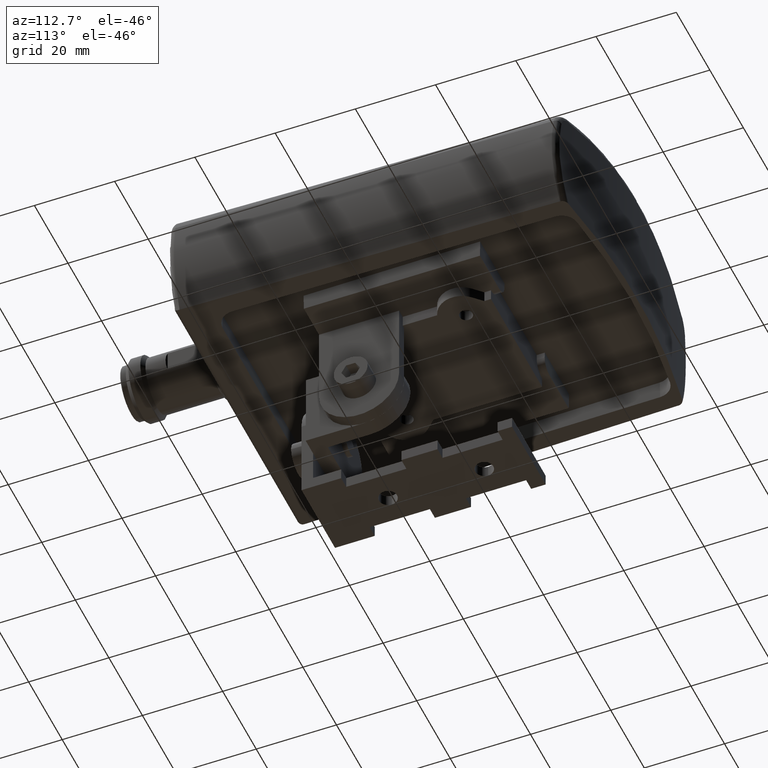
[diagram: clean part render]
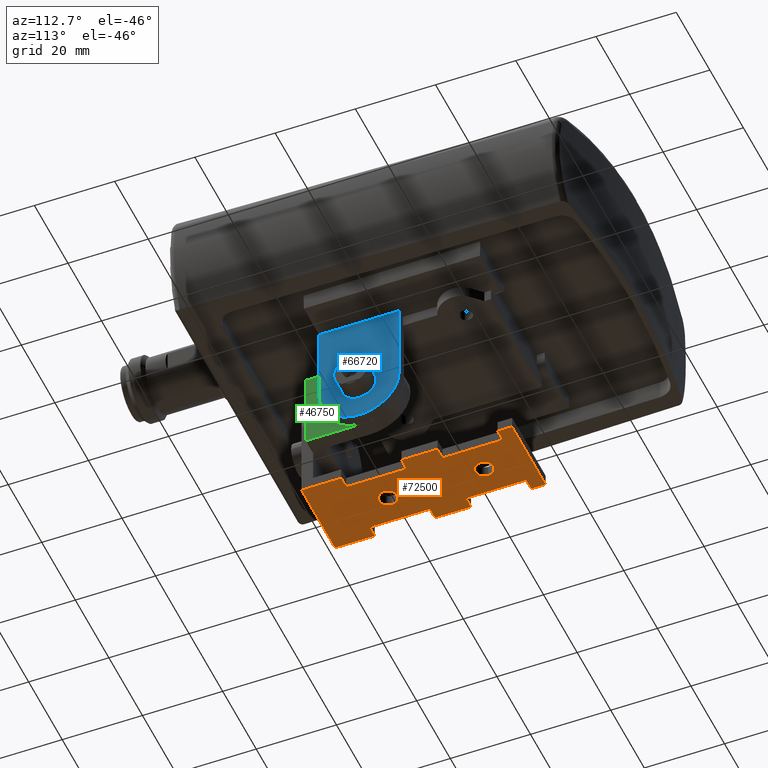
[diagram: same view with three faces highlighted in distinct colors, each labeled with its STEP entity id]
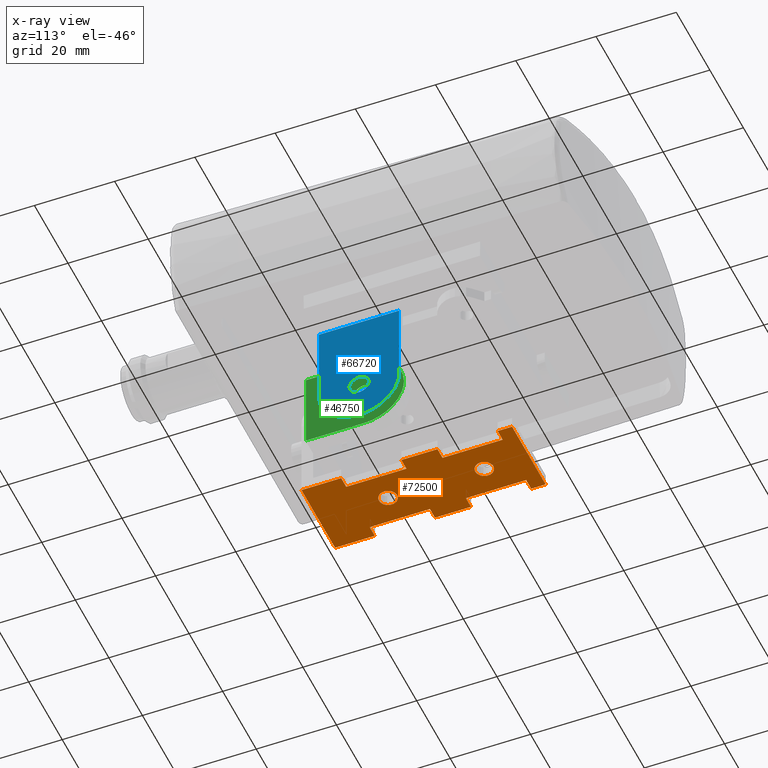
[diagram: x-ray of the same camera — body ghosted, the three highlighted faces saturated]
A machine part, auxiliary view with three faces highlighted in distinct colors.
The next image is the same camera in x-ray (body ghosted, the three faces saturated) — at least one of them is partly hidden behind the body in this view.
Their STEP definitions:

[orange] entity #72500 — the highlighted planar face has unit normal (-0, -0, -1).
#70250=CARTESIAN_POINT('',(2.24999999991314,20.9999999999364,
-33.4000000000816));
#70260=VERTEX_POINT('',#70250);
#70420=CARTESIAN_POINT('',(-2.25000000008688,20.9999999999364,
-33.4000000000816));
#70430=VERTEX_POINT('',#70420);
#70460=CARTESIAN_POINT('',(-8.68702870054916E-11,20.9999999999364,
-33.4000000000816));
#70470=DIRECTION('',(0.,1.,0.));
#70480=DIRECTION('',(1.,0.,0.));
#70490=AXIS2_PLACEMENT_3D('',#70460,#70470,#70480);
#70500=CIRCLE('',#70490,2.25000000000001);
#70510=EDGE_CURVE('',#70260,#70430,#70500,.T.);
#70630=CARTESIAN_POINT('',(-10.5006615002634,20.9999999999364,
3.26566149985691));
#70640=DIRECTION('',(-0.,1.,0.));
#70650=DIRECTION('',(1.,0.,0.));
#70660=AXIS2_PLACEMENT_3D('',#70630,#70640,#70650);
#70670=PLANE('',#70660);
#70680=EDGE_CURVE('',#70430,#70260,#70500,.T.);
#70690=ORIENTED_EDGE('',*,*,#70680,.F.);
#70700=ORIENTED_EDGE('',*,*,#70510,.F.);
#70710=EDGE_LOOP('',(#70700,#70690));
#70720=FACE_BOUND('',#70710,.T.);
#70730=CARTESIAN_POINT('',(-1.41042144977122E-10,20.9999999999364,
-9.40000000009163));
#70740=DIRECTION('',(0.,1.,0.));
#70750=DIRECTION('',(1.,0.,0.));
#70760=AXIS2_PLACEMENT_3D('',#70730,#70740,#70750);
#70770=CIRCLE('',#70760,2.25);
#70780=CARTESIAN_POINT('',(-2.25000000014104,20.9999999999364,
-9.40000000009163));
#70790=VERTEX_POINT('',#70780);
#70800=CARTESIAN_POINT('',(2.24999999985896,20.9999999999364,
-9.40000000009163));
#70810=VERTEX_POINT('',#70800);
#70820=EDGE_CURVE('',#70790,#70810,#70770,.T.);
#70830=ORIENTED_EDGE('',*,*,#70820,.F.);
#70840=EDGE_CURVE('',#70810,#70790,#70770,.T.);
#70850=ORIENTED_EDGE('',*,*,#70840,.F.);
#70860=EDGE_LOOP('',(#70850,#70830));
#70870=FACE_BOUND('',#70860,.T.);
#70880=CARTESIAN_POINT('',(0.,20.9999999999364,-44.5000000001218));
#70890=DIRECTION('',(1.,0.,0.));
#70900=VECTOR('',#70890,1.);
#70910=LINE('',#70880,#70900);
#70920=CARTESIAN_POINT('',(-10.0000000001507,20.9999999999364,
-44.5000000001218));
#70930=VERTEX_POINT('',#70920);
#70940=CARTESIAN_POINT('',(9.9999999998893,20.9999999999364,
-44.5000000001218));
#70950=VERTEX_POINT('',#70940);
#70960=EDGE_CURVE('',#70930,#70950,#70910,.T.);
#70970=ORIENTED_EDGE('',*,*,#70960,.F.);
#70980=CARTESIAN_POINT('',(9.9999999998893,20.9999999999364,0.));
#70990=DIRECTION('',(0.,0.,1.));
#71000=VECTOR('',#70990,1.);
#71010=LINE('',#70980,#71000);
#71020=CARTESIAN_POINT('',(9.9999999998893,20.9999999999364,
-40.900000000104));
#71030=VERTEX_POINT('',#71020);
#71040=EDGE_CURVE('',#70950,#71030,#71010,.T.);
#71050=ORIENTED_EDGE('',*,*,#71040,.F.);
#71060=CARTESIAN_POINT('',(0.,20.9999999999364,-40.900000000104));
#71070=DIRECTION('',(1.,0.,0.));
#71080=VECTOR('',#71070,1.);
#71090=LINE('',#71060,#71080);
#71100=CARTESIAN_POINT('',(6.99999999988665,20.9999999999364,
-40.9000000001));
#71110=VERTEX_POINT('',#71100);
#71120=EDGE_CURVE('',#71110,#71030,#71090,.T.);
#71130=ORIENTED_EDGE('',*,*,#71120,.T.);
#71140=CARTESIAN_POINT('',(6.99999999988665,20.9999999999364,0.));
#71150=DIRECTION('',(0.,0.,-1.));
#71160=VECTOR('',#71150,1.);
#71170=LINE('',#71140,#71160);
#71180=CARTESIAN_POINT('',(6.99999999988665,20.9999999999364,
-25.900000000104));
#71190=VERTEX_POINT('',#71180);
#71200=EDGE_CURVE('',#71190,#71110,#71170,.T.);
#71210=ORIENTED_EDGE('',*,*,#71200,.T.);
#71220=CARTESIAN_POINT('',(0.,20.9999999999364,-25.900000000104));
#71230=DIRECTION('',(1.,0.,0.));
#71240=VECTOR('',#71230,1.);
#71250=LINE('',#71220,#71240);
#71260=CARTESIAN_POINT('',(9.99999999984762,20.9999999999364,
-25.900000000104));
#71270=VERTEX_POINT('',#71260);
#71280=EDGE_CURVE('',#71190,#71270,#71250,.T.);
#71290=ORIENTED_EDGE('',*,*,#71280,.F.);
#71300=CARTESIAN_POINT('',(9.99999999984762,20.9999999999364,0.));
#71310=DIRECTION('',(0.,0.,1.));
#71320=VECTOR('',#71310,1.);
#71330=LINE('',#71300,#71320);
#71340=CARTESIAN_POINT('',(9.99999999984762,20.9999999999364,
-16.900000000104));
#71350=VERTEX_POINT('',#71340);
#71360=EDGE_CURVE('',#71270,#71350,#71330,.T.);
#71370=ORIENTED_EDGE('',*,*,#71360,.F.);
#71380=CARTESIAN_POINT('',(0.,20.9999999999364,-16.900000000104));
#71390=DIRECTION('',(1.,0.,0.));
#71400=VECTOR('',#71390,1.);
#71410=LINE('',#71380,#71400);
#71420=CARTESIAN_POINT('',(6.99999999959,20.9999999999364,
-16.900000000104));
#71430=VERTEX_POINT('',#71420);
#71440=EDGE_CURVE('',#71430,#71350,#71410,.T.);
#71450=ORIENTED_EDGE('',*,*,#71440,.T.);
#71460=CARTESIAN_POINT('',(6.99999999983665,20.9999999999364,0.));
#71470=DIRECTION('',(0.,0.,-1.));
#71480=VECTOR('',#71470,1.);
#71490=LINE('',#71460,#71480);
#71500=CARTESIAN_POINT('',(6.99999999983665,20.9999999999364,
-1.90000000009));
#71510=VERTEX_POINT('',#71500);
#71520=EDGE_CURVE('',#71510,#71430,#71490,.T.);
#71530=ORIENTED_EDGE('',*,*,#71520,.T.);
#71540=CARTESIAN_POINT('',(0.,20.9999999999364,-1.900000000094));
#71550=DIRECTION('',(1.,0.,0.));
#71560=VECTOR('',#71550,1.);
#71570=LINE('',#71540,#71560);
#71580=CARTESIAN_POINT('',(10.0000000000918,20.9999999999364,
-1.900000000094));
#71590=VERTEX_POINT('',#71580);
#71600=EDGE_CURVE('',#71510,#71590,#71570,.T.);
#71610=ORIENTED_EDGE('',*,*,#71600,.F.);
#71620=CARTESIAN_POINT('',(10.0000000000918,20.9999999999364,0.));
#71630=DIRECTION('',(0.,0.,1.));
#71640=VECTOR('',#71630,1.);
#71650=LINE('',#71620,#71640);
#71660=CARTESIAN_POINT('',(10.0000000000918,20.9999999999364,
7.99999999989478));
#71670=VERTEX_POINT('',#71660);
#71680=EDGE_CURVE('',#71590,#71670,#71650,.T.);
#71690=ORIENTED_EDGE('',*,*,#71680,.F.);
#71700=CARTESIAN_POINT('',(0.,20.9999999999364,7.99999999989478));
#71710=DIRECTION('',(-1.,0.,0.));
#71720=VECTOR('',#71710,1.);
#71730=LINE('',#71700,#71720);
#71740=CARTESIAN_POINT('',(-10.0000000002357,20.9999999999364,
7.99999999989478));
#71750=VERTEX_POINT('',#71740);
#71760=EDGE_CURVE('',#71670,#71750,#71730,.T.);
#71770=ORIENTED_EDGE('',*,*,#71760,.F.);
#71780=CARTESIAN_POINT('',(-10.0000000002357,20.9999999999364,0.));
#71790=DIRECTION('',(0.,0.,1.));
#71800=VECTOR('',#71790,1.);
#71810=LINE('',#71780,#71800);
#71820=CARTESIAN_POINT('',(-10.0000000002357,20.9999999999364,
-1.90000000012697));
#71830=VERTEX_POINT('',#71820);
#71840=EDGE_CURVE('',#71830,#71750,#71810,.T.);
#71850=ORIENTED_EDGE('',*,*,#71840,.T.);
#71860=CARTESIAN_POINT('',(0.,20.9999999999364,-1.90000000012697));
#71870=DIRECTION('',(-1.,0.,0.));
#71880=VECTOR('',#71870,1.);
#71890=LINE('',#71860,#71880);
#71900=CARTESIAN_POINT('',(-7.00000000008,20.9999999999364,
-1.90000000012697));
#71910=VERTEX_POINT('',#71900);
#71920=EDGE_CURVE('',#71910,#71830,#71890,.T.);
#71930=ORIENTED_EDGE('',*,*,#71920,.T.);
#71940=CARTESIAN_POINT('',(-7.00000000016335,20.9999999999364,0.));
#71950=DIRECTION('',(0.,0.,1.));
#71960=VECTOR('',#71950,1.);
#71970=LINE('',#71940,#71960);
#71980=CARTESIAN_POINT('',(-7.00000000004,20.9999999999364,
-16.900000000097));
#71990=VERTEX_POINT('',#71980);
#72000=EDGE_CURVE('',#71990,#71910,#71970,.T.);
#72010=ORIENTED_EDGE('',*,*,#72000,.T.);
#72020=CARTESIAN_POINT('',(0.,20.9999999999364,-16.900000000097));
#72030=DIRECTION('',(-1.,0.,0.));
#72040=VECTOR('',#72030,1.);
#72050=LINE('',#72020,#72040);
#72060=CARTESIAN_POINT('',(-10.0000000001924,20.9999999999364,
-16.900000000097));
#72070=VERTEX_POINT('',#72060);
#72080=EDGE_CURVE('',#71990,#72070,#72050,.T.);
#72090=ORIENTED_EDGE('',*,*,#72080,.F.);
#72100=CARTESIAN_POINT('',(-10.0000000001924,20.9999999999364,0.));
#72110=DIRECTION('',(0.,0.,1.));
#72120=VECTOR('',#72110,1.);
#72130=LINE('',#72100,#72120);
#72140=CARTESIAN_POINT('',(-10.0000000001924,20.9999999999364,
-25.900000000097));
#72150=VERTEX_POINT('',#72140);
#72160=EDGE_CURVE('',#72150,#72070,#72130,.T.);
#72170=ORIENTED_EDGE('',*,*,#72160,.T.);
#72180=CARTESIAN_POINT('',(0.,20.9999999999364,-25.900000000097));
#72190=DIRECTION('',(-1.,0.,0.));
#72200=VECTOR('',#72190,1.);
#72210=LINE('',#72180,#72200);
#72220=CARTESIAN_POINT('',(-7.00000000011335,20.9999999999364,
-25.9000000001));
#72230=VERTEX_POINT('',#72220);
#72240=EDGE_CURVE('',#72230,#72150,#72210,.T.);
#72250=ORIENTED_EDGE('',*,*,#72240,.T.);
#72260=CARTESIAN_POINT('',(-7.00000000011335,20.9999999999364,0.));
#72270=DIRECTION('',(0.,0.,1.));
#72280=VECTOR('',#72270,1.);
#72290=LINE('',#72260,#72280);
#72300=CARTESIAN_POINT('',(-7.00000000011335,20.9999999999364,
-40.9000000001));
#72310=VERTEX_POINT('',#72300);
#72320=EDGE_CURVE('',#72310,#72230,#72290,.T.);
#72330=ORIENTED_EDGE('',*,*,#72320,.T.);
#72340=CARTESIAN_POINT('',(0.,20.9999999999364,-40.900000000097));
#72350=DIRECTION('',(-1.,0.,0.));
#72360=VECTOR('',#72350,1.);
#72370=LINE('',#72340,#72360);
#72380=CARTESIAN_POINT('',(-10.0000000001507,20.9999999999364,
-40.900000000097));
#72390=VERTEX_POINT('',#72380);
#72400=EDGE_CURVE('',#72310,#72390,#72370,.T.);
#72410=ORIENTED_EDGE('',*,*,#72400,.F.);
#72420=CARTESIAN_POINT('',(-10.0000000001507,20.9999999999364,0.));
#72430=DIRECTION('',(0.,0.,1.));
#72440=VECTOR('',#72430,1.);
#72450=LINE('',#72420,#72440);
#72460=EDGE_CURVE('',#70930,#72390,#72450,.T.);
#72470=ORIENTED_EDGE('',*,*,#72460,.T.);
#72480=EDGE_LOOP('',(#72470,#72410,#72330,#72250,#72170,#72090,#72010,
#71930,#71850,#71770,#71690,#71610,#71530,#71450,#71370,#71290,#71210,
#71130,#71050,#70970));
#72490=FACE_OUTER_BOUND('',#72480,.T.);
#72500=ADVANCED_FACE('',(#70720,#70870,#72490),#70670,.T.);

[blue] entity #66720 — the highlighted planar face has unit normal (1, -0, -0).
#62300=CARTESIAN_POINT('',(-17.2999999995781,-20.499939074518,
-19.4000000000288));
#62310=VERTEX_POINT('',#62300);
#62360=CARTESIAN_POINT('',(-17.2999999995781,-20.499939074518,0.));
#62370=DIRECTION('',(0.,-3.15864629346254E-17,-1.));
#62380=VECTOR('',#62370,1.);
#62390=LINE('',#62360,#62380);
#62400=CARTESIAN_POINT('',(-17.2999999995781,-20.499939074518,
0.600000000014597));
#62410=VERTEX_POINT('',#62400);
#62420=EDGE_CURVE('',#62410,#62310,#62390,.T.);
#63430=CARTESIAN_POINT('',(-17.2999999995781,0.,0.600000000014597));
#63440=DIRECTION('',(0.,-1.,0.));
#63450=VECTOR('',#63440,1.);
#63460=LINE('',#63430,#63450);
#63470=CARTESIAN_POINT('',(-17.2999999995781,-2.50881154290795E-10,
0.600000000035747));
#63480=VERTEX_POINT('',#63470);
#63490=EDGE_CURVE('',#63480,#62410,#63460,.T.);
#65200=CARTESIAN_POINT('',(-17.2999999995781,-2.50880925443246E-10,
-19.3999999999642));
#65210=VERTEX_POINT('',#65200);
#65240=CARTESIAN_POINT('',(-17.2999999995781,0.,-19.4000000000288));
#65250=DIRECTION('',(0.,-1.,0.));
#65260=VECTOR('',#65250,1.);
#65270=LINE('',#65240,#65260);
#65280=EDGE_CURVE('',#65210,#62310,#65270,.T.);
#66400=CARTESIAN_POINT('',(-17.2999999995781,-17.2395804273111,
2.60000718699516));
#66410=DIRECTION('',(-1.,0.,0.));
#66420=DIRECTION('',(0.,1.,0.));
#66430=AXIS2_PLACEMENT_3D('',#66400,#66410,#66420);
#66440=PLANE('',#66430);
#66450=CARTESIAN_POINT('',(-17.2999999995781,-1.40287781391635E-10,
-9.39999999996617));
#66460=DIRECTION('',(-1.,0.,-9.33204437958375E-28));
#66470=DIRECTION('',(0.,1.,0.));
#66480=AXIS2_PLACEMENT_3D('',#66450,#66460,#66470);
#66490=CIRCLE('',#66480,2.5);
#66500=CARTESIAN_POINT('',(-17.2999999995781,2.49999999985971,
-9.39999999996617));
#66510=VERTEX_POINT('',#66500);
#66520=CARTESIAN_POINT('',(-17.2999999995781,-2.50000000014029,
-9.39999999996617));
#66530=VERTEX_POINT('',#66520);
#66540=EDGE_CURVE('',#66510,#66530,#66490,.T.);
#66550=ORIENTED_EDGE('',*,*,#66540,.F.);
#66560=EDGE_CURVE('',#66530,#66510,#66490,.T.);
#66570=ORIENTED_EDGE('',*,*,#66560,.F.);
#66580=EDGE_LOOP('',(#66570,#66550));
#66590=FACE_BOUND('',#66580,.T.);
#66600=CARTESIAN_POINT('',(-17.2999999995781,-1.49724677100949E-10,
-9.39999999996425));
#66610=DIRECTION('',(-1.,0.,0.));
#66620=DIRECTION('',(0.,1.,0.));
#66630=AXIS2_PLACEMENT_3D('',#66600,#66610,#66620);
#66640=CIRCLE('',#66630,10.);
#66650=EDGE_CURVE('',#63480,#65210,#66640,.T.);
#66660=ORIENTED_EDGE('',*,*,#66650,.T.);
#66670=ORIENTED_EDGE('',*,*,#63490,.F.);
#66680=ORIENTED_EDGE('',*,*,#62420,.F.);
#66690=ORIENTED_EDGE('',*,*,#65280,.T.);
#66700=EDGE_LOOP('',(#66690,#66680,#66670,#66660));
#66710=FACE_OUTER_BOUND('',#66700,.T.);
#66720=ADVANCED_FACE('',(#66590,#66710),#66440,.T.);

[green] entity #46750 — the highlighted planar face has unit normal (1, -0, -0).
#45220=CARTESIAN_POINT('',(-14.3999999996117,-2.08828E-10,
-19.4000000000288));
#45230=VERTEX_POINT('',#45220);
#45260=CARTESIAN_POINT('',(-14.3999999998,0.000172686095091,
-19.399999998371));
#45270=CARTESIAN_POINT('',(-14.3999999998,-0.162871950302471,
-19.400002949966));
#45280=CARTESIAN_POINT('',(-14.3999999997994,-0.488967864450683,
-19.3920026554678));
#45290=CARTESIAN_POINT('',(-14.399999999796,-1.14064117518329,
-19.3441360440565));
#45300=CARTESIAN_POINT('',(-14.3999999997856,-2.2766087994664,
-19.1765257119671));
#45310=CARTESIAN_POINT('',(-14.3999999997676,-3.53814159718309,
-18.7939038419276));
#45320=CARTESIAN_POINT('',(-14.3999999997501,-4.72573292958265,
-18.2312625448936));
#45330=CARTESIAN_POINT('',(-14.3999999997378,-5.56984963269711,
-17.7245535859952));
#45340=CARTESIAN_POINT('',(-14.3999999997272,-6.35812342773005,
-17.1387488010477));
#45350=CARTESIAN_POINT('',(-14.3999999997184,-7.0840037047848,
-16.4802944806686));
#45360=CARTESIAN_POINT('',(-14.3999999997116,-7.74207423384972,
-15.7540547624227));
#45370=CARTESIAN_POINT('',(-14.399999999705,-8.52248223249296,
-14.7028550822585));
#45380=CARTESIAN_POINT('',(-14.399999999701,-9.29975832415315,
-13.2499527234101));
#45390=CARTESIAN_POINT('',(-14.3999999997001,-9.77724627934899,
-11.673029110774));
#45400=CARTESIAN_POINT('',(-14.3999999997001,-9.94426582067911,
-10.5392749529805));
#45410=CARTESIAN_POINT('',(-14.3999999997001,-9.99202037734846,
-9.88839703004065));
#45420=CARTESIAN_POINT('',(-14.3999999997001,-10.0000000002,
-9.56277952375528));
#45430=CARTESIAN_POINT('',(-14.3999999997001,-10.0000000002,
-9.39999999999003));
#45440=B_SPLINE_CURVE_WITH_KNOTS('',3,(#45260,#45270,#45280,#45290,
#45300,#45310,#45320,#45330,#45340,#45350,#45360,#45370,#45380,#45390,
#45400,#45410,#45420,#45430),.UNSPECIFIED.,.F.,.F.,(4,1,1,1,1,1,1,1,1,1,
1,1,1,1,1,4),(0.,0.03115953940215,0.062308101776037,0.12483955281047,
0.250219159264715,0.312935905768342,0.375578402899612,0.438068867620401,
0.500325937524272,0.56257916469528,0.625054464237608,0.750198515365854,
0.875319671887568,0.937782237922395,0.968891130712818,1.),.UNSPECIFIED.)
;
#45450=CARTESIAN_POINT('',(-14.3999999996117,-9.99999999998144,
-9.39999999999003));
#45460=VERTEX_POINT('',#45450);
#45470=EDGE_CURVE('',#45230,#45460,#45440,.T.);
#45760=CARTESIAN_POINT('',(-14.3999999996117,-9.99999999998144,
5.10000000002));
#45770=VERTEX_POINT('',#45760);
#46030=CARTESIAN_POINT('',(-14.3999999996117,-9.99999999998144,0.));
#46040=DIRECTION('',(-2.50821742015141E-28,0.,-1.));
#46050=VECTOR('',#46040,1.);
#46060=LINE('',#46030,#46050);
#46070=EDGE_CURVE('',#45770,#45460,#46060,.T.);
#46190=CARTESIAN_POINT('',(-14.3999999999993,7.44981088790874,
-2.63433849995463));
#46200=DIRECTION('',(-1.,0.,0.));
#46210=DIRECTION('',(0.,1.,0.));
#46220=AXIS2_PLACEMENT_3D('',#46190,#46200,#46210);
#46230=PLANE('',#46220);
#46240=ORIENTED_EDGE('',*,*,#45470,.T.);
#46250=CARTESIAN_POINT('',(-14.3999999996117,-9.68248400496918E-5,
-9.4006761835588));
#46260=DIRECTION('',(-1.,6.71792842865271E-56,2.50821742015141E-28));
#46270=DIRECTION('',(2.47971927400903E-28,-0.150315439591635,
0.988638087785603));
#46280=AXIS2_PLACEMENT_3D('',#46250,#46260,#46270);
#46290=ELLIPSE('',#46280,9.99951230217515,9.99951229908778);
#46300=CARTESIAN_POINT('',(-14.3999999996117,7.07106781171427,
-16.4710678118312));
#46310=VERTEX_POINT('',#46300);
#46320=EDGE_CURVE('',#46310,#45230,#46290,.T.);
#46330=ORIENTED_EDGE('',*,*,#46320,.T.);
#46340=CARTESIAN_POINT('',(-14.3999999996117,-1.49724677100949E-10,
-9.39999999996425));
#46350=DIRECTION('',(-1.,0.,0.));
#46360=DIRECTION('',(0.,1.,0.));
#46370=AXIS2_PLACEMENT_3D('',#46340,#46350,#46360);
#46380=CIRCLE('',#46370,10.);
#46390=CARTESIAN_POINT('',(-14.3999999996117,9.99999999985027,
-9.3999999999756));
#46400=VERTEX_POINT('',#46390);
#46410=EDGE_CURVE('',#46400,#46310,#46380,.T.);
#46420=ORIENTED_EDGE('',*,*,#46410,.T.);
#46430=CARTESIAN_POINT('',(-14.3999999996117,9.99999999978814,0.));
#46440=DIRECTION('',(2.50821742015141E-28,0.,1.));
#46450=VECTOR('',#46440,1.);
#46460=LINE('',#46430,#46450);
#46470=CARTESIAN_POINT('',(-14.3999999996117,9.99999999978814,
5.10000000002));
#46480=VERTEX_POINT('',#46470);
#46490=EDGE_CURVE('',#46400,#46480,#46460,.T.);
#46500=ORIENTED_EDGE('',*,*,#46490,.F.);
#46510=CARTESIAN_POINT('',(-14.3999999996117,0.,5.10000000002));
#46520=DIRECTION('',(-6.71792842865271E-56,-1.,0.));
#46530=VECTOR('',#46520,1.);
#46540=LINE('',#46510,#46530);
#46550=EDGE_CURVE('',#46480,#45770,#46540,.T.);
#46560=ORIENTED_EDGE('',*,*,#46550,.F.);
#46570=ORIENTED_EDGE('',*,*,#46070,.F.);
#46580=EDGE_LOOP('',(#46570,#46560,#46500,#46420,#46330,#46240));
#46590=FACE_OUTER_BOUND('',#46580,.T.);
#46600=CARTESIAN_POINT('',(-14.3999999999993,-1.40286938316025E-10,
-9.39999999996617));
#46610=DIRECTION('',(-1.,0.,0.));
#46620=DIRECTION('',(0.,1.,0.));
#46630=AXIS2_PLACEMENT_3D('',#46600,#46610,#46620);
#46640=CIRCLE('',#46630,2.5);
#46650=CARTESIAN_POINT('',(-14.3999999996117,2.49999999985972,
-9.39999999996617));
#46660=VERTEX_POINT('',#46650);
#46670=CARTESIAN_POINT('',(-14.3999999999993,-2.50000000014029,
-9.39999999996617));
#46680=VERTEX_POINT('',#46670);
#46690=EDGE_CURVE('',#46660,#46680,#46640,.T.);
#46700=ORIENTED_EDGE('',*,*,#46690,.F.);
#46710=EDGE_CURVE('',#46680,#46660,#46640,.T.);
#46720=ORIENTED_EDGE('',*,*,#46710,.F.);
#46730=EDGE_LOOP('',(#46720,#46700));
#46740=FACE_BOUND('',#46730,.T.);
#46750=ADVANCED_FACE('',(#46590,#46740),#46230,.T.);